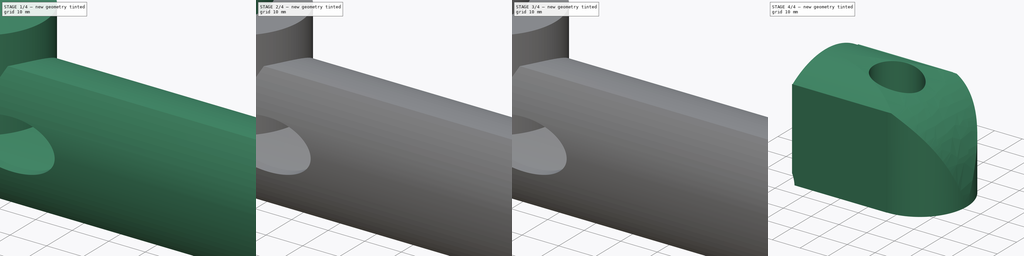
[diagram: build sequence overview — one tinted view per stage of 4, left to right]
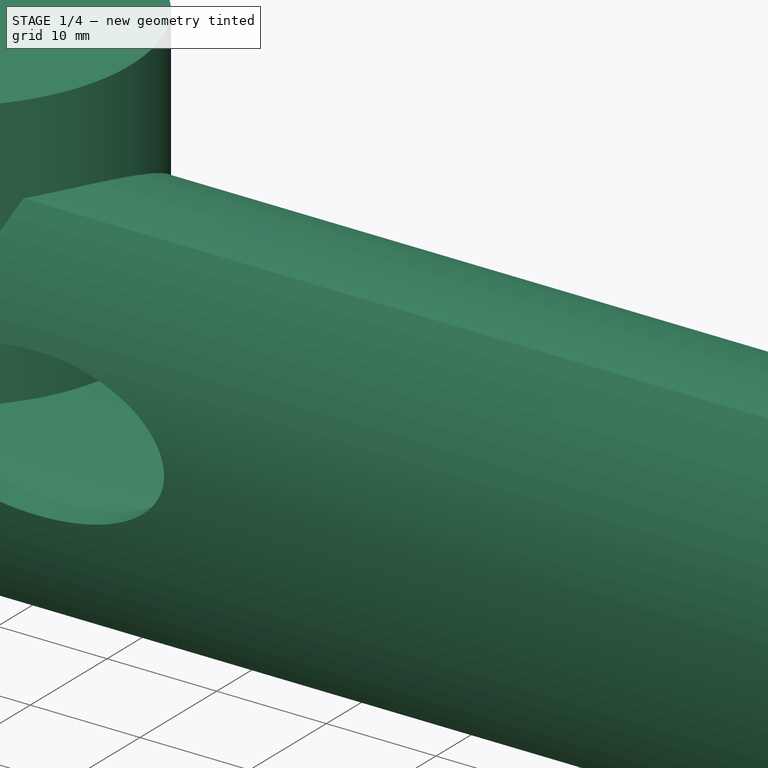
[diagram: stage 1 of 4 — iso view after this stage's code; geometry added in this stage tinted green]
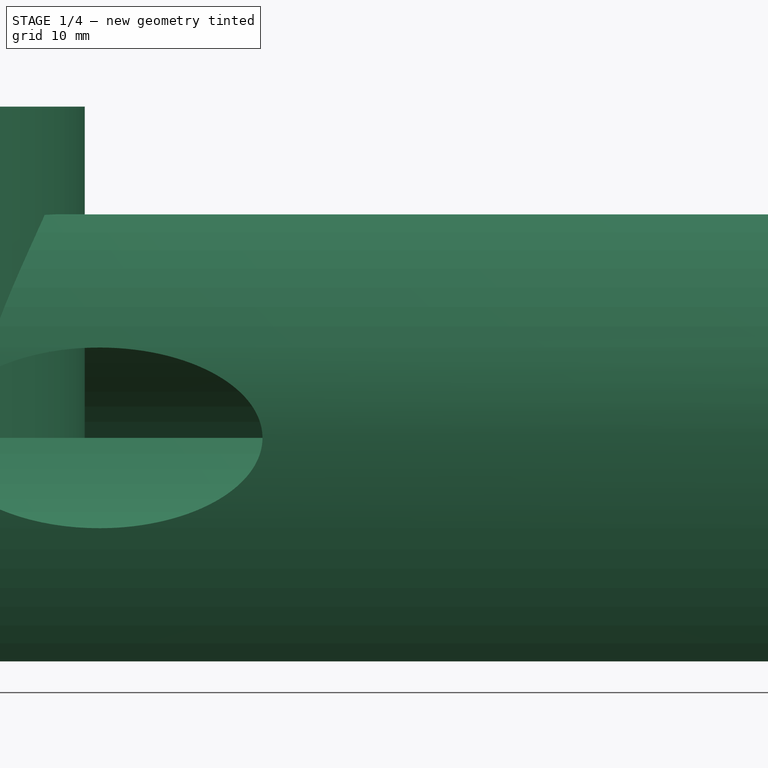
[diagram: stage 1 of 4 — front view after this stage's code; geometry added in this stage tinted green]
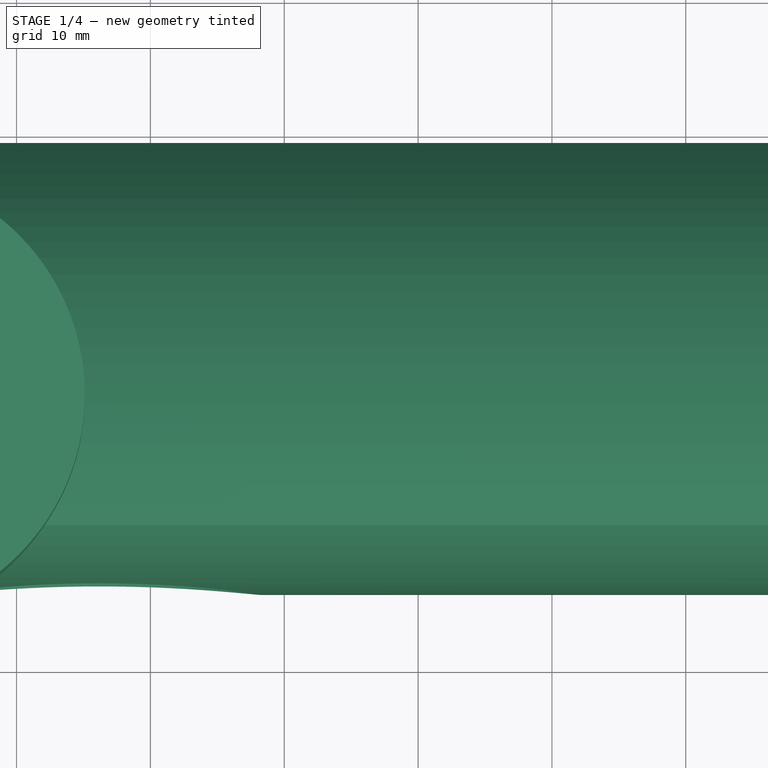
[diagram: stage 1 of 4 — top view after this stage's code; geometry added in this stage tinted green]
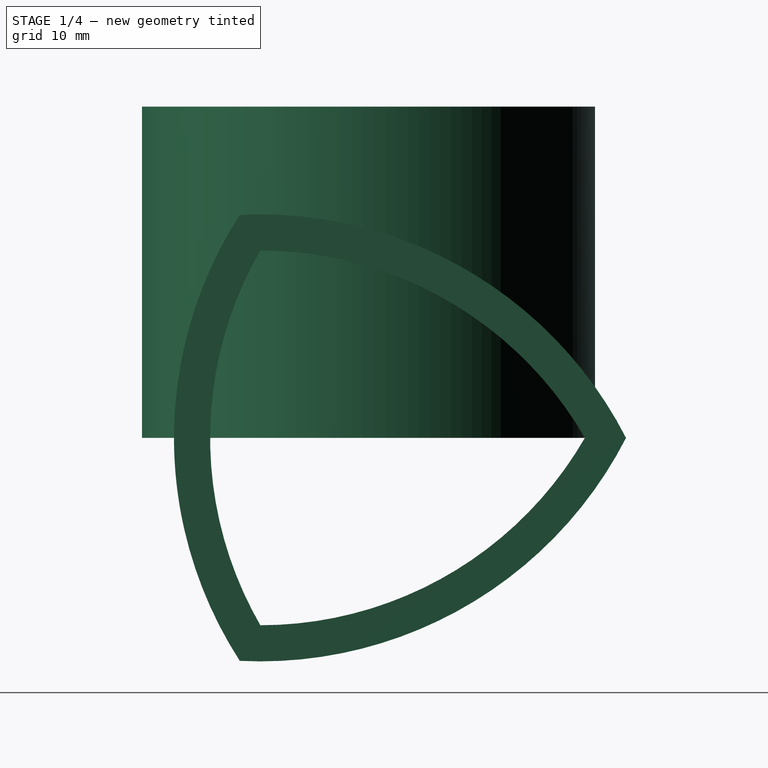
[diagram: stage 1 of 4 — right view after this stage's code; geometry added in this stage tinted green]
FCSTD DOCUMENT  (FreeCAD 1.1R39288 (Git))
Label: Щётка
License: All rights reserved
LicenseURL: https://en.wikipedia.org/wiki/All_rights_reserved
objects: Sketcher::SketchObject×13, PartDesign::Pocket×8, PartDesign::Pad×4, PartDesign::Body×3, PartDesign::SubShapeBinder×2, PartDesign::PolarPattern×1, PartDesign::Thickness×1
note: 72 computed .brp shape members not serialized (recipe doc carries the construction recipe); baked Part::Feature solids carry a one-line shape summary decoded from their .brp

FEATURE [Sketcher::SketchObject] Sketch
  ArcFitTolerance = 1e-06
  AttachmentSupport = -> [XY_Plane]
  FullyConstrained = true
  MakeInternals = false
  MapMode = 5
  sketch-geometry (7):
    g0: ArcOfCircle CenterX=-8.175 CenterY=0 CenterZ=0 NormalX=0 NormalY=0 NormalZ=1 AngleXU=0 Radius=16.925 StartAngle=1.5708 EndAngle=4.71239
    g1: ArcOfCircle CenterX=8.175 CenterY=0 CenterZ=0 NormalX=0 NormalY=0 NormalZ=1 AngleXU=0 Radius=16.925 StartAngle=4.71239 EndAngle=7.85398
    g2: LineSegment StartX=-8.175 StartY=16.925 StartZ=0 EndX=8.17495 EndY=16.925 EndZ=0
    g3: LineSegment StartX=8.175 StartY=-16.925 StartZ=0 EndX=-8.175 EndY=-16.925 EndZ=0
    g4: Circle CenterX=0 CenterY=0 CenterZ=0 NormalX=0 NormalY=0 NormalZ=1 AngleXU=0 Radius=4.7
    g5: GeomPoint [constr] X=-25.1 Y=0 Z=0
    g6: GeomPoint [constr] X=25.1 Y=0 Z=0
  constraints (16):
    c: PointOnObject(g1,g-1)
    c: Coincident(g2,g1)
    c: Horizontal(g2)
    c: Horizontal(g3)
    c: Tangent(g2,g0) = 1.5708
    c: Tangent(g3,g0) = 1.5708
    c: Tangent(g3,g1) = 1.5708
    c: Symmetric(g1,g0,g-2)
    c: Coincident(g4,g-1)
    c: Diameter(g4) = 9.4
    c: PointOnObject(g5,g0)
    c: PointOnObject(g6,g1)
    c: Distance(g5,g6) = 50.2
    c: PointOnObject(g6,g-1)
    c: PointOnObject(g5,g-1)
    c: DistanceY(g1,g1) = 33.85
FEATURE [PartDesign::Pad] Pad
  Direction = (0,0,1)
  Length = 24.75
  Length2 = 10
  Profile = -> Sketch
  ReferenceAxis = -> Sketch [N_Axis]
  Refine = true
  Suppressed = false
  Type = 0
FEATURE [PartDesign::Body] Body  label="Тело"
  AllowCompound = false
  Group = -> [Sketch,Pad,Sketch001,Pocket,Sketch002,Pocket001,Sketch003,Pocket002,Sketch004,Pocket003,Sketch006,Pad001,PolarPattern]
  Origin = -> Origin
  Placement = pos=(-3.1e-15,0,25) rot=(0,1,0;3.14159rad)
  Tip = -> PolarPattern
FEATURE [Sketcher::SketchObject] Sketch007
  ArcFitTolerance = 1e-06
  AttachmentOffset = pos=(0,0,0) rot=(0,0,1;0.523599rad)
  AttachmentSupport = -> [YZ_Plane001]
  FullyConstrained = true
  MakeInternals = false
  MapMode = 5
  Placement = pos=(0,0,0) rot=(0.654654,0.377964,0.654654;2.41886rad)
  sketch-geometry (10):
    g0: LineSegment [constr] StartX=0 StartY=16.1658 StartZ=0 EndX=-14 EndY=-8.0829 EndZ=0
    g1: LineSegment [constr] StartX=-14 StartY=-8.0829 StartZ=0 EndX=14 EndY=-8.0829 EndZ=0
    g2: LineSegment [constr] StartX=14 StartY=-8.0829 StartZ=0 EndX=0 EndY=16.1658 EndZ=0
    g3: Circle [constr] CenterX=0 CenterY=0 CenterZ=0 NormalX=0 NormalY=0 NormalZ=1 AngleXU=0 Radius=16.1658
    g4: Circle [constr] CenterX=-14 CenterY=-8.0829 CenterZ=0 NormalX=0 NormalY=0 NormalZ=1 AngleXU=0 Radius=28
    g5: Circle [constr] CenterX=0 CenterY=16.1658 CenterZ=0 NormalX=0 NormalY=0 NormalZ=1 AngleXU=0 Radius=28
    g6: Circle [constr] CenterX=14 CenterY=-8.0829 CenterZ=0 NormalX=0 NormalY=0 NormalZ=1 AngleXU=0 Radius=28
    g7: ArcOfCircle CenterX=0 CenterY=16.1658 CenterZ=0 NormalX=0 NormalY=0 NormalZ=1 AngleXU=0 Radius=28 StartAngle=4.18879 EndAngle=5.23599
    g8: ArcOfCircle CenterX=-14 CenterY=-8.0829 CenterZ=0 NormalX=0 NormalY=0 NormalZ=1 AngleXU=0 Radius=28 StartAngle=0 EndAngle=1.0472
    g9: ArcOfCircle CenterX=14 CenterY=-8.0829 CenterZ=0 NormalX=0 NormalY=0 NormalZ=1 AngleXU=0 Radius=28 StartAngle=2.0944 EndAngle=3.14159
  constraints (24):
    c: Coincident(g0,g1)
    c: Coincident(g1,g2)
    c: Coincident(g2,g0)
    c: Equal(g0,g1)
    c: PointOnObject(g1,g3)
    c: PointOnObject(g2,g3)
    c: Coincident(g3,g-1)
    c: PointOnObject(g2,g-2)
    c: Coincident(g4,g0)
    c: Coincident(g5,g0)
    c: Coincident(g6,g1)
    c: Equal(g6,g5)
    c: Equal(g5,g4)
    c: DistanceX(g1,g1) = 28
    c: Radius(g5) = 28
    c: Coincident(g8,g7)
    c: Coincident(g8,g7)
    c: Coincident(g8,g7)
    c: Coincident(g9,g0)
    c: Coincident(g7,g0)
    c: Coincident(g7,g9)
    c: Coincident(g7,g1)
    c: Coincident(g9,g0)
    c: PointOnObject(g0,g3)
FEATURE [PartDesign::Pad] Pad002
  Direction = (1,0,0)
  Length = 120
  Length2 = 10
  Placement = pos=(0,0,0) rot=(1,1,1;2.0944rad)
  Profile = -> Sketch007
  ReferenceAxis = -> Sketch007 [N_Axis]
  Refine = true
  Suppressed = false
  Type = 0
FEATURE [PartDesign::Thickness] Thickness
  Base = -> Pad002 [Face5,Face4]
  BaseFeature = -> Pad002
  Intersection = true
  Join = 1
  Mode = 1
  Refine = true
  SupportTransform = false
  Suppressed = false
  Value = 2.7
FEATURE [Sketcher::SketchObject] Sketch008
  ArcFitTolerance = 1e-06
  AttachmentOffset = pos=(0,0,17) rot=(0,0,1;0rad)
  AttachmentSupport = -> [XZ_Plane001]
  FullyConstrained = true
  MakeInternals = false
  MapMode = 5
  Placement = pos=(0,-17,3.8e-15) rot=(1,0,0;1.5708rad)
  sketch-geometry (5):
    g0: Ellipse CenterX=26.1875 CenterY=0 CenterZ=0 NormalX=0 NormalY=0 NormalZ=1 MajorRadius=12.1875 MinorRadius=6.75 AngleXU=-3.14159
    g1: LineSegment [constr] StartX=14 StartY=0 StartZ=0 EndX=38.375 EndY=0 EndZ=0
    g2: LineSegment [constr] StartX=26.1875 StartY=-6.75 StartZ=0 EndX=26.1875 EndY=6.75 EndZ=0
    g3: GeomPoint [constr] X=16.04 Y=0 Z=0
    g4: GeomPoint [constr] X=36.335 Y=0 Z=0
  constraints (6):
    c: InternalAlignment(g1-g4 -> g0) x4
    c: PointOnObject(g0,g-1)
    c: DistanceX(g1,g1) = 24.375
    c: DistanceY(g2,g2) = 13.5
    c: PointOnObject(g1,g-1)
    c: DistanceX(g-1,g1) = 14
FEATURE [PartDesign::Pocket] Pocket004
  BaseFeature = -> Thickness
  Direction = (0,1,-2e-16)
  Length = 5
  Length2 = 5
  Offset = 5
  Profile = -> Sketch008
  ReferenceAxis = -> Sketch008 [N_Axis]
  Refine = true
  Suppressed = false
  Type = 2
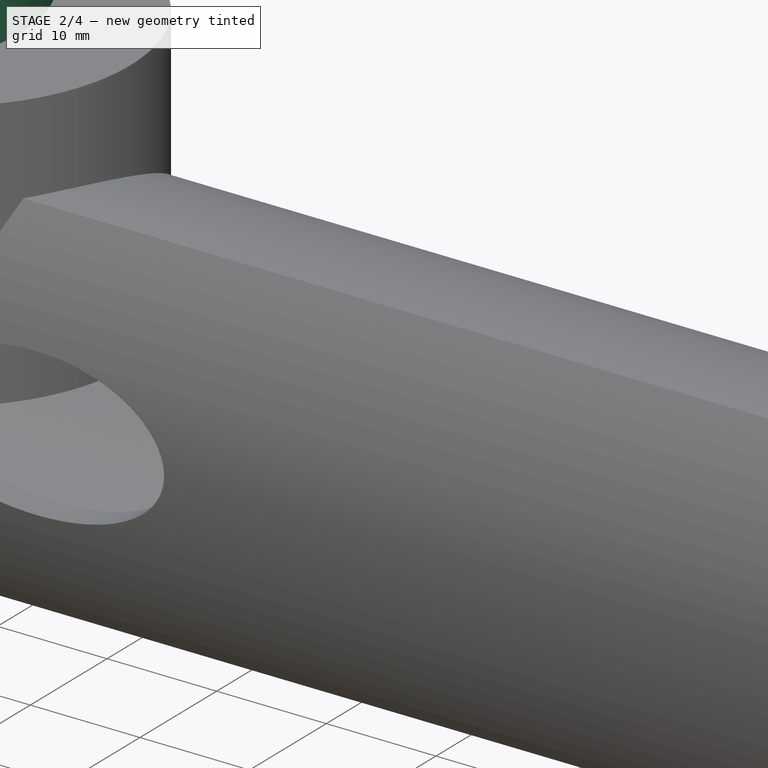
[diagram: stage 2 of 4 — iso view after this stage's code; geometry added in this stage tinted green]
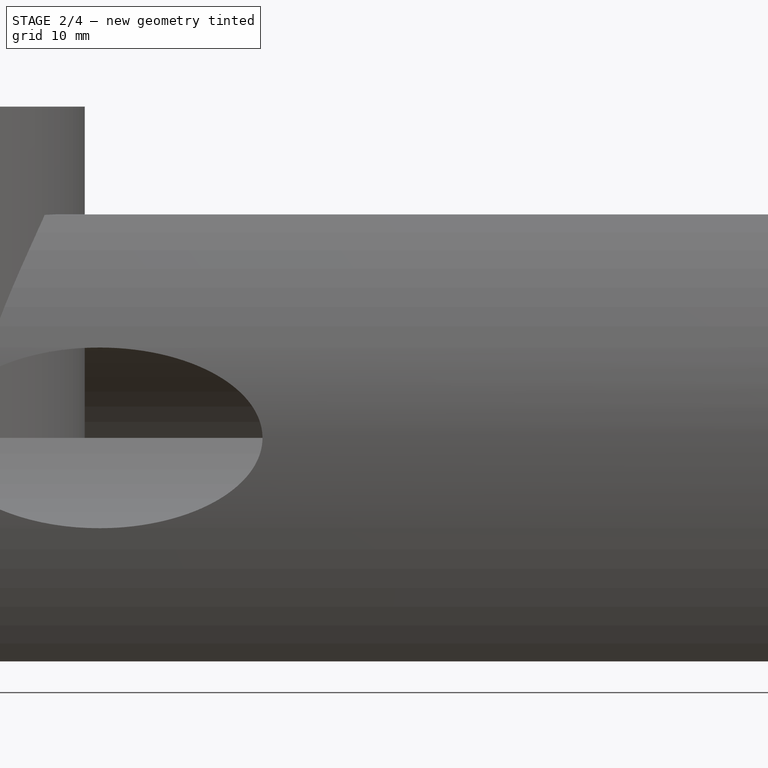
[diagram: stage 2 of 4 — front view after this stage's code; geometry added in this stage tinted green]
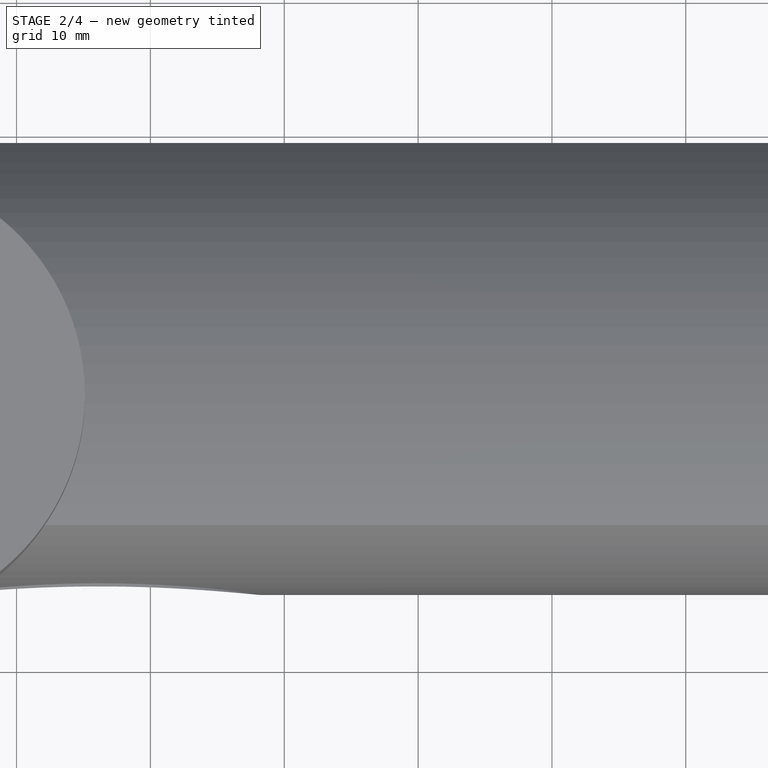
[diagram: stage 2 of 4 — top view after this stage's code; geometry added in this stage tinted green]
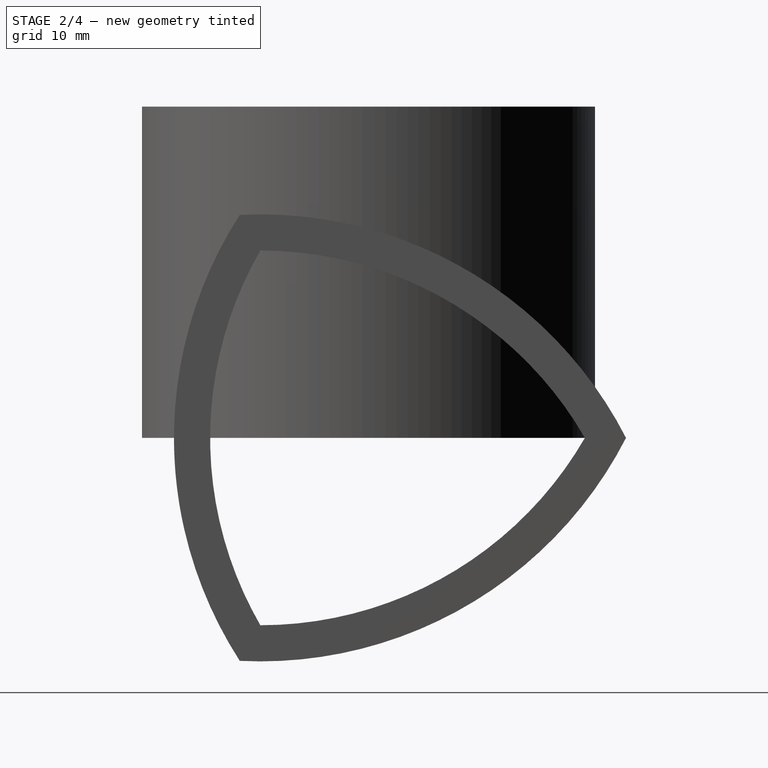
[diagram: stage 2 of 4 — right view after this stage's code; geometry added in this stage tinted green]
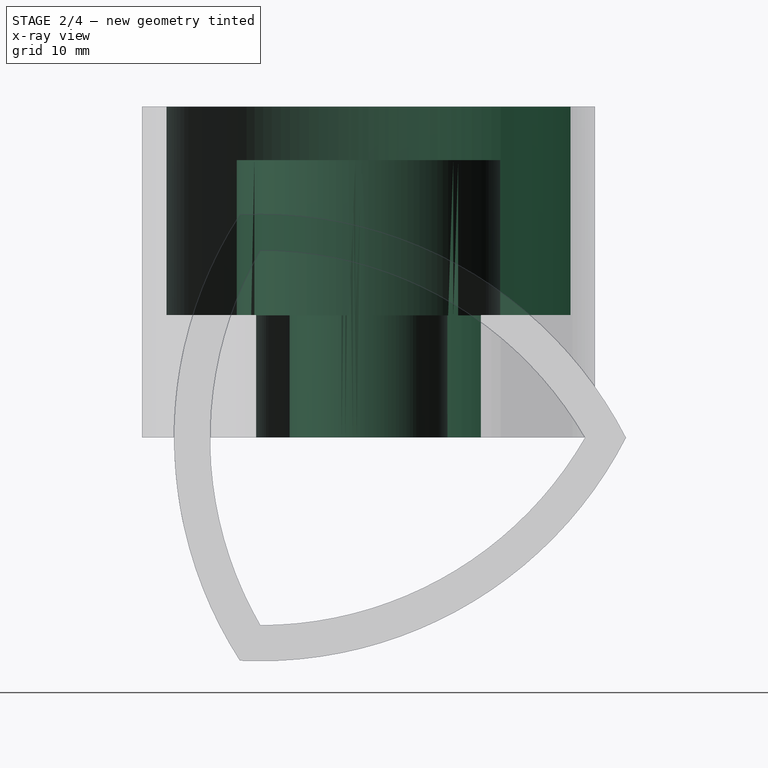
[diagram: stage 2 of 4 — x-ray composite at the right view; earlier geometry ghosted, this stage's added geometry solid]
FEATURE [Sketcher::SketchObject] Sketch001
  ArcFitTolerance = 1e-06
  AttachmentSupport = -> [Pad]
  FullyConstrained = true
  MakeInternals = false
  MapMode = 5
  Placement = pos=(0,0,24.75) rot=(0,0,1;0rad)
  sketch-geometry (2):
    g0: Circle CenterX=0 CenterY=0 CenterZ=0 NormalX=0 NormalY=0 NormalZ=1 AngleXU=0 Radius=15.1
    g1: Circle CenterX=0 CenterY=0 CenterZ=0 NormalX=0 NormalY=0 NormalZ=1 AngleXU=0 Radius=9.85
  constraints (4):
    c: Coincident(g0,g-1)
    c: Coincident(g1,g0)
    c: Diameter(g0) = 30.2
    c: Diameter(g1) = 19.7
FEATURE [PartDesign::Pocket] Pocket
  BaseFeature = -> Pad
  Direction = (0,0,-1)
  Length = 15.6
  Length2 = 5
  Profile = -> Sketch001
  ReferenceAxis = -> Sketch001 [N_Axis]
  Refine = true
  Suppressed = false
  Type = 0
FEATURE [Sketcher::SketchObject] Sketch002
  ArcFitTolerance = 1e-06
  AttachmentSupport = -> [Pocket]
  ExternalGeometry = -> [Pocket]
  FullyConstrained = true
  MakeInternals = false
  MapMode = 5
  Placement = pos=(0,0,24.75) rot=(0,0,1;0rad)
  sketch-geometry (2):
    g0: Circle CenterX=0 CenterY=0 CenterZ=0 NormalX=0 NormalY=0 NormalZ=1 AngleXU=0 Radius=4.7
    g1: Circle CenterX=0 CenterY=0 CenterZ=0 NormalX=0 NormalY=0 NormalZ=1 AngleXU=0 Radius=9.85
  constraints (4):
    c: Coincident(g0,g-1)
    c: Coincident(g1,g0)
    c: Equal(g1,g-3)
    c: Equal(g0,g-4)
FEATURE [PartDesign::Pocket] Pocket001
  BaseFeature = -> Pocket
  Direction = (0,0,-1)
  Length = 4
  Length2 = 5
  Profile = -> Sketch002
  ReferenceAxis = -> Sketch002 [N_Axis]
  Refine = true
  Suppressed = false
  Type = 0
FEATURE [Sketcher::SketchObject] Sketch003
  ArcFitTolerance = 1e-06
  AttachmentSupport = -> [Pocket001]
  ExternalGeometry = -> [Pocket001]
  FullyConstrained = true
  MakeInternals = false
  MapMode = 5
  Placement = pos=(0,0,0) rot=(1,0,0;3.14159rad)
  sketch-geometry (2):
    g0: Circle CenterX=0 CenterY=0 CenterZ=0 NormalX=0 NormalY=0 NormalZ=1 AngleXU=0 Radius=8.4
    g1: Circle CenterX=0 CenterY=0 CenterZ=0 NormalX=0 NormalY=0 NormalZ=1 AngleXU=0 Radius=5.9
  constraints (5):
    c: Coincident(g0,g-1)
    c: Coincident(g1,g0)
    c: Distance(g-4,g1) = 1.2
    c: Distance(g0,g-3) = 1.45
    c: Distance(g1,g0) = 2.5
FEATURE [PartDesign::Pocket] Pocket002
  BaseFeature = -> Pocket001
  Direction = (0,0,1)
  Length = 0
  Length2 = 5
  Offset = 1
  Profile = -> Sketch003
  ReferenceAxis = -> Sketch003 [N_Axis]
  Refine = true
  Suppressed = false
  Type = 3
  UpToFace = -> Pocket001 [Face9]
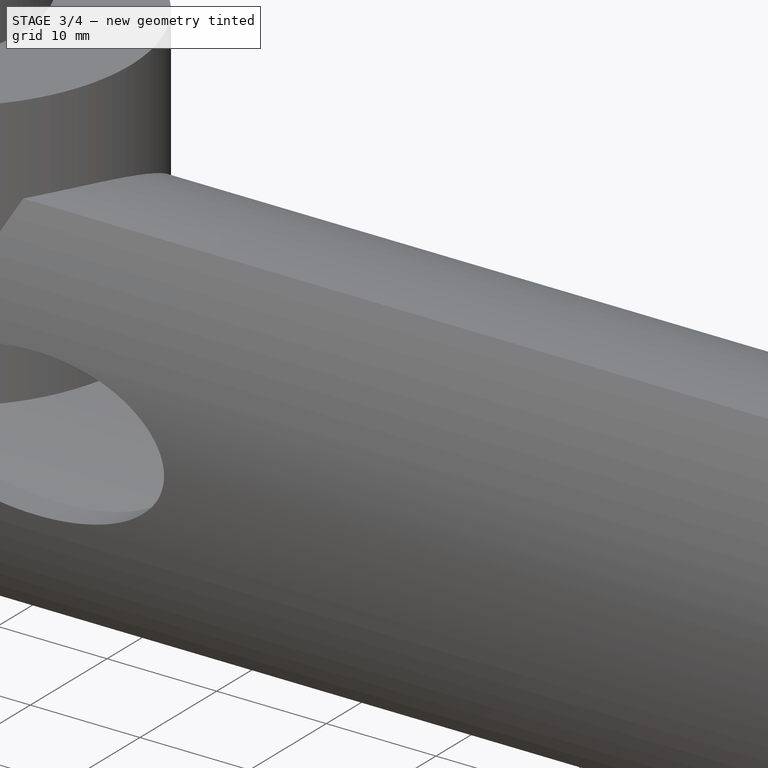
[diagram: stage 3 of 4 — iso view after this stage's code; geometry added in this stage tinted green]
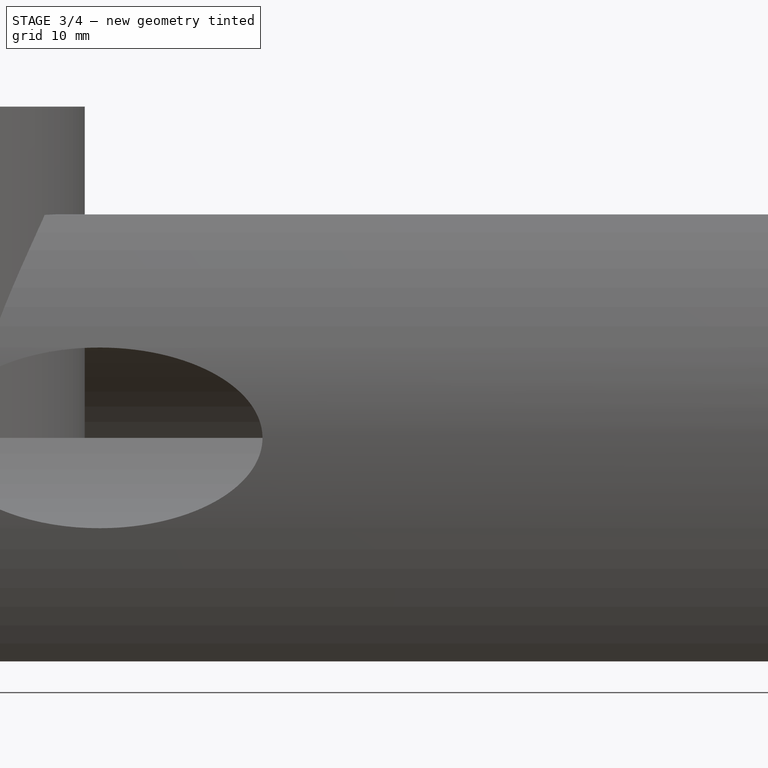
[diagram: stage 3 of 4 — front view after this stage's code; geometry added in this stage tinted green]
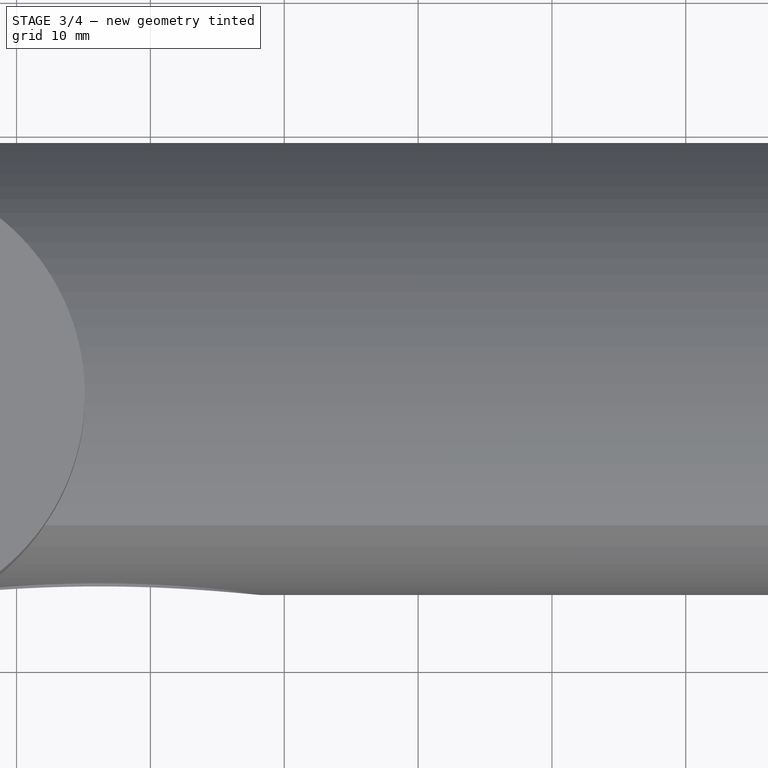
[diagram: stage 3 of 4 — top view after this stage's code; geometry added in this stage tinted green]
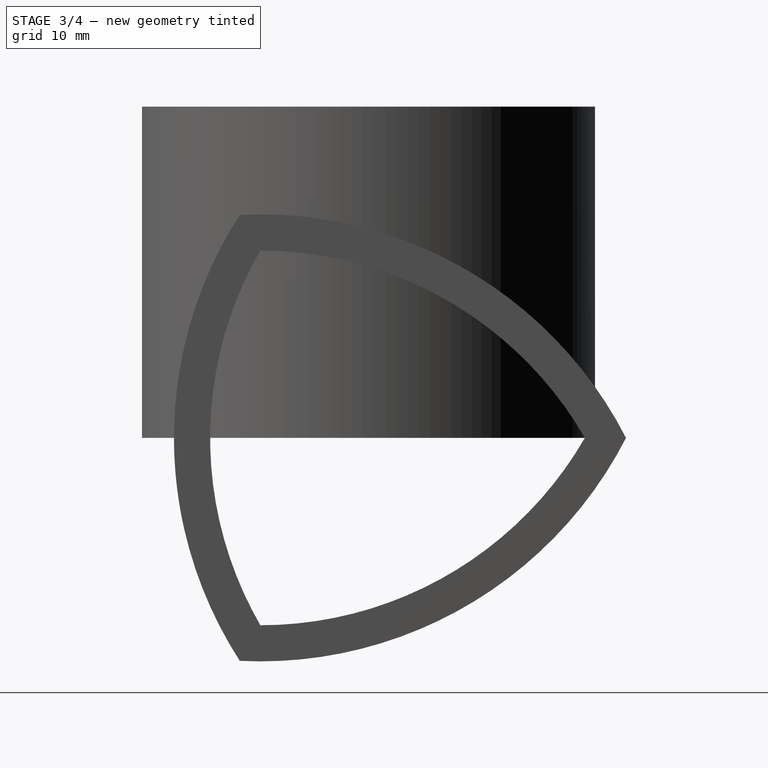
[diagram: stage 3 of 4 — right view after this stage's code; geometry added in this stage tinted green]
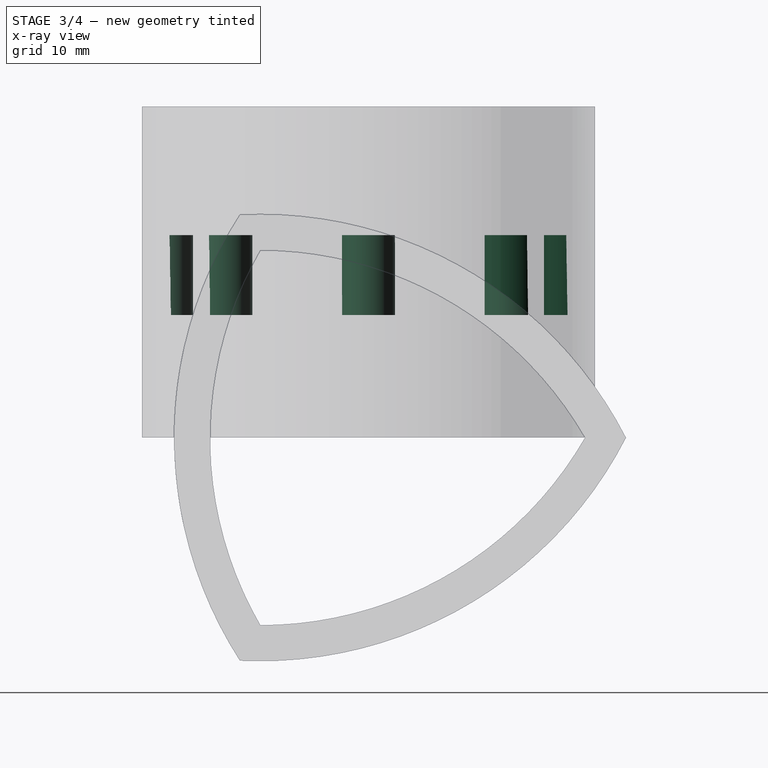
[diagram: stage 3 of 4 — x-ray composite at the right view; earlier geometry ghosted, this stage's added geometry solid]
FEATURE [Sketcher::SketchObject] Sketch004
  ArcFitTolerance = 1e-06
  AttachmentSupport = -> [Pocket002]
  ExternalGeometry = -> [Pocket002]
  FullyConstrained = true
  MakeInternals = false
  MapMode = 5
  Placement = pos=(0,0,0) rot=(1,0,0;3.14159rad)
  sketch-geometry (2):
    g0: Circle CenterX=0 CenterY=0 CenterZ=0 NormalX=0 NormalY=0 NormalZ=1 AngleXU=0 Radius=4.7
    g1: Circle CenterX=0 CenterY=0 CenterZ=0 NormalX=0 NormalY=0 NormalZ=1 AngleXU=0 Radius=5.9
  constraints (4):
    c: Coincident(g0,g-1)
    c: Coincident(g1,g0)
    c: Equal(g1,g-4)
    c: Equal(g0,g-3)
FEATURE [PartDesign::Pocket] Pocket003
  BaseFeature = -> Pocket002
  Direction = (0,0,1)
  Length = 10.5
  Length2 = 5
  Profile = -> Sketch004
  ReferenceAxis = -> Sketch004 [N_Axis]
  Refine = true
  Suppressed = false
  Type = 0
FEATURE [Sketcher::SketchObject] Sketch006
  ArcFitTolerance = 1e-06
  AttachmentOffset = pos=(0,0,-11.6) rot=(0,0,1;0rad)
  AttachmentSupport = -> [Pocket001]
  ExternalGeometry = -> [Pocket001]
  FullyConstrained = true
  MakeInternals = false
  MapMode = 5
  Placement = pos=(0,0,9.15) rot=(0,0,1;0rad)
  sketch-geometry (2):
    g0: ArcOfCircle CenterX=-15.1 CenterY=0 CenterZ=0 NormalX=0 NormalY=0 NormalZ=1 AngleXU=0 Radius=2 StartAngle=4.77866 EndAngle=7.78771
    g1: ArcOfCircle CenterX=0 CenterY=0 CenterZ=0 NormalX=0 NormalY=0 NormalZ=1 AngleXU=0 Radius=15.1 StartAngle=3.00905 EndAngle=3.27414
  constraints (7):
    c: Radius(g0) = 2
    c: Coincident(g1,g-1)
    c: Coincident(g1,g0)
    c: Coincident(g1,g0)
    c: PointOnObject(g0,g-3)
    c: PointOnObject(g0,g1)
    c: PointOnObject(g0,g-1)
FEATURE [PartDesign::Pad] Pad001
  BaseFeature = -> Pocket003
  Direction = (0,0,1)
  Length = 6
  Length2 = 10
  Profile = -> Sketch006
  ReferenceAxis = -> Sketch006 [N_Axis]
  Refine = true
  Suppressed = false
  Type = 0
FEATURE [PartDesign::PolarPattern] PolarPattern
  Angle = 360
  Axis = -> Sketch006 [N_Axis]
  BaseFeature = -> Pad001
  Mode = 0
  Occurrences = 8
  Offset = 120
  Originals = -> [Pad001]
  Refine = true
  Suppressed = false
  TransformMode = 0
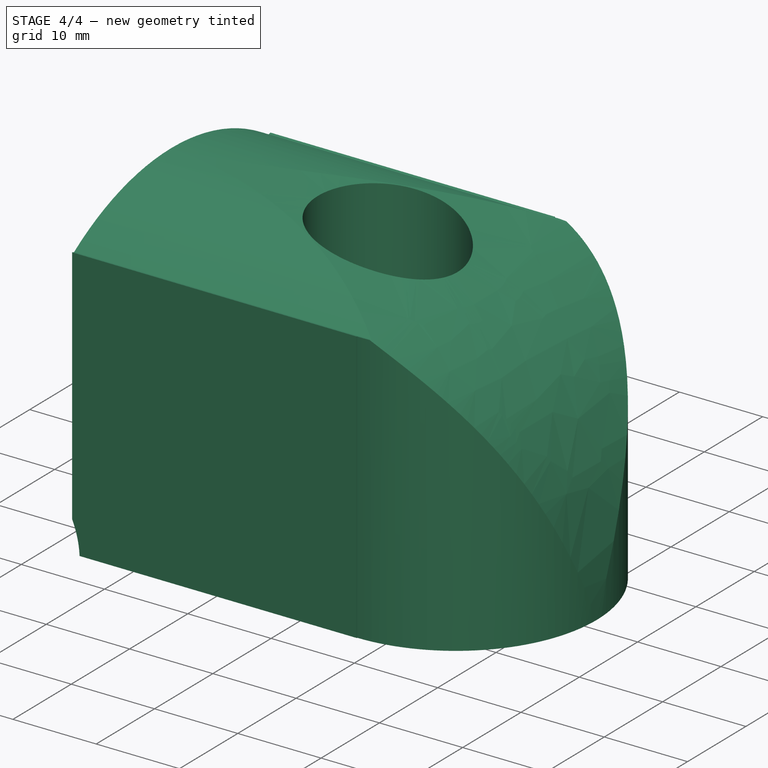
[diagram: stage 4 of 4 — iso view after this stage's code; geometry added in this stage tinted green]
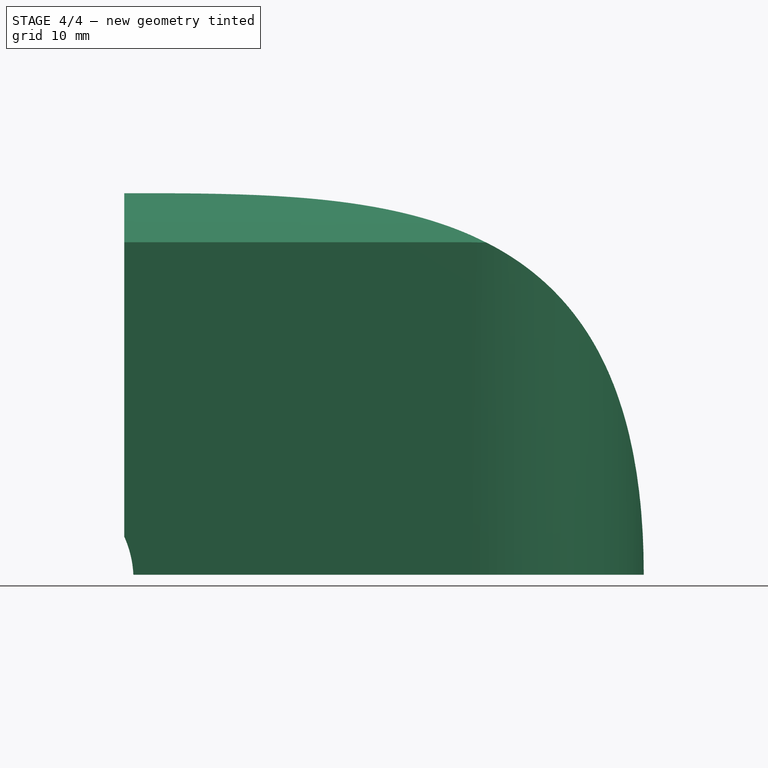
[diagram: stage 4 of 4 — front view after this stage's code; geometry added in this stage tinted green]
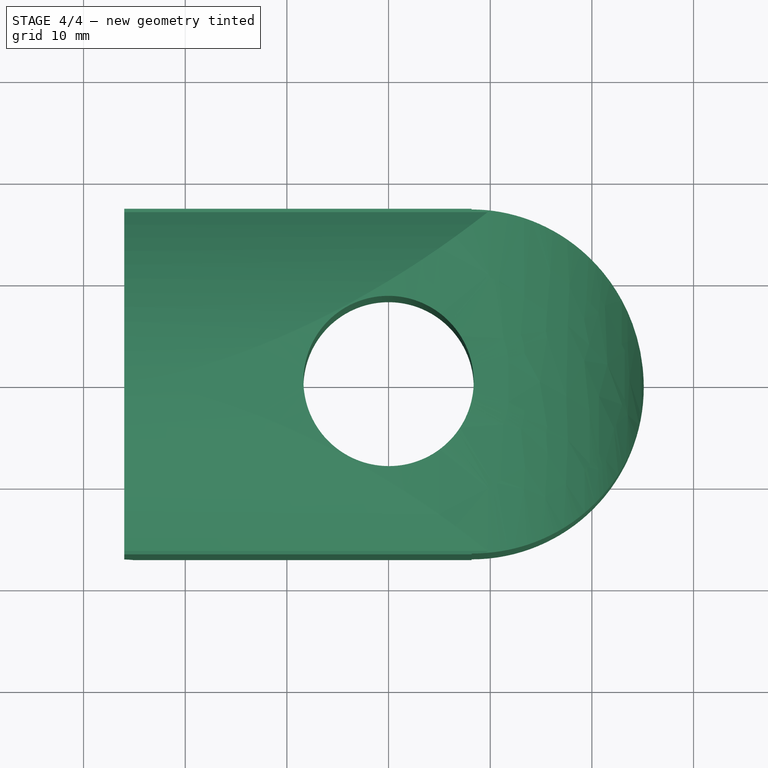
[diagram: stage 4 of 4 — top view after this stage's code; geometry added in this stage tinted green]
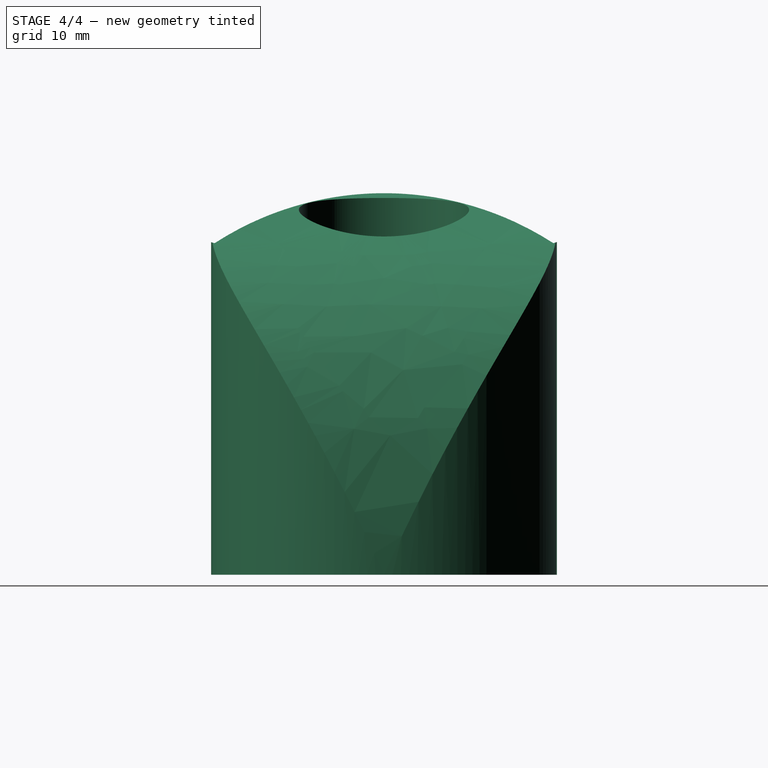
[diagram: stage 4 of 4 — right view after this stage's code; geometry added in this stage tinted green]
FEATURE [PartDesign::Body] Body001  label="Тело001"
  AllowCompound = false
  Group = -> [Sketch007,Pad002,Thickness,Sketch008,Pocket004]
  Origin = -> Origin001
  Placement = pos=(-146,0,48) rot=(-1,0,0;1.5708rad)
  Tip = -> Pocket004
FEATURE [PartDesign::SubShapeBinder] Binder
  BindCopyOnChange = 0
  BindMode = 0
  ClaimChildren = false
  Context = -> Body002 [Binder.]
  Fuse = false
  MakeFace = true
  OffsetFill = false
  OffsetIntersection = false
  OffsetJoinType = 0
  OffsetOpenResult = false
  PartialLoad = false
  Refine = true
  Relative = true
  Support = -> [Body[PolarPattern.Face5],Body001[Pocket004.Face5]]
  _Version = 2
FEATURE [Sketcher::SketchObject] Sketch010
  ArcFitTolerance = 1e-06
  AttachmentSupport = -> [Binder]
  ExternalGeometry = -> [Binder]
  FullyConstrained = false
  MakeInternals = false
  MapMode = 5
  Placement = pos=(0,0,0.25) rot=(1,0,0;3.14159rad)
  sketch-geometry (6):
    g0: LineSegment StartX=8.175 StartY=16.925 StartZ=0 EndX=8.175 EndY=21.0592 EndZ=0
    g1: LineSegment StartX=8.175 StartY=-16.925 StartZ=0 EndX=8.175 EndY=-19.6209 EndZ=0
    g2: LineSegment StartX=8.175 StartY=-19.6209 StartZ=0 EndX=28.0501 EndY=-19.6209 EndZ=0
    g3: LineSegment StartX=28.0501 StartY=-19.6209 StartZ=0 EndX=28.0501 EndY=21.0592 EndZ=0
    g4: LineSegment StartX=28.0501 StartY=21.0592 StartZ=0 EndX=8.175 EndY=21.0592 EndZ=0
    g5: ArcOfCircle CenterX=8.175 CenterY=-5.656e-13 CenterZ=0 NormalX=0 NormalY=0 NormalZ=1 AngleXU=0 Radius=16.925 StartAngle=4.71239 EndAngle=7.85398
  constraints (13):
    c: Coincident(g0,g-3)
    c: Coincident(g1,g-3)
    c: Coincident(g1,g2)
    c: Horizontal(g2)
    c: Coincident(g2,g3)
    c: Coincident(g3,g4)
    c: Coincident(g4,g0)
    c: Horizontal(g4)
    c: Coincident(g5,g-3)
    c: Coincident(g5,g0)
    c: Vertical(g0)
    c: Vertical(g3)
    c: Vertical(g1)
FEATURE [PartDesign::SubShapeBinder] Binder001
  BindCopyOnChange = 0
  BindMode = 0
  ClaimChildren = false
  Context = -> Body002 [Binder001.]
  Fuse = false
  MakeFace = true
  OffsetFill = false
  OffsetIntersection = false
  OffsetJoinType = 0
  OffsetOpenResult = false
  PartialLoad = false
  Refine = true
  Relative = true
  Support = -> [Body[PolarPattern.Face4]]
  _Version = 2
FEATURE [Sketcher::SketchObject] Sketch009
  ArcFitTolerance = 1e-06
  AttachmentSupport = -> [XZ_Plane002]
  ExternalGeometry = -> [Binder,Binder001]
  FullyConstrained = false
  MakeInternals = false
  MapMode = 5
  Placement = pos=(0,0,0) rot=(1,0,0;1.5708rad)
  sketch-geometry (10):
    g0-g3: Circle [constr] x4 (B-spline internal-alignment scaffolding for g4; pole/knot coordinates omitted)
    g4: BSplineCurve PolesCount=4 KnotsCount=2 Degree=3 IsPeriodic=0
    g5: GeomPoint [constr] X=-26 Y=62.5342 Z=0
    g6: GeomPoint [constr] X=25.1 Y=25 Z=0
    g7: ArcOfCircle CenterX=-35.4488 CenterY=24.5117 CenterZ=0 NormalX=0 NormalY=0 NormalZ=1 AngleXU=0 Radius=10.3603 StartAngle=0.047153 EndAngle=0.422617
    g8: LineSegment StartX=-26 StartY=28.7609 StartZ=0 EndX=-26 EndY=62.5342 EndZ=0
    g9: LineSegment StartX=-25.1 StartY=25 StartZ=0 EndX=25.1 EndY=25 EndZ=0
  constraints (19):
    c: Weight(g0) = 1
    c: Equal(g0,g1)
    c: Equal(g0,g2)
    c: Equal(g0,g3)
    c: InternalAlignment(g0-g3 -> g4) x4
    c: InternalAlignment(g5,g4)
    c: InternalAlignment(g6,g4)
    c: Coincident(g0,g-6)
    c: PointOnObject(g1,g-2)
    c: Coincident(g3,g-5)
    c: Horizontal(g4,g1)
    c: Horizontal(g1,g2)
    c: Vertical(g4,g2)
    c: Coincident(g7,g-7)
    c: Coincident(g7,g-4)
    c: Coincident(g8,g7)
    c: Coincident(g8,g4)
    c: Coincident(g9,g7)
    c: Coincident(g9,g4)
FEATURE [PartDesign::Pad] Pad003
  Direction = (0,-1,2e-16)
  Length = 17
  Length2 = 17
  Placement = pos=(0,0,0) rot=(1,0,0;1.5708rad)
  Profile = -> Sketch009
  ReferenceAxis = -> Sketch009 [N_Axis]
  Refine = true
  Suppressed = false
  Type = 4
FEATURE [PartDesign::Pocket] Pocket005
  BaseFeature = -> Pad003
  Direction = (0,0,1)
  Length = 5
  Length2 = 5
  Placement = pos=(0,0,0) rot=(1,0,0;1.5708rad)
  Profile = -> Sketch010
  ReferenceAxis = -> Sketch010 [N_Axis]
  Refine = true
  Suppressed = false
  Type = 1
FEATURE [Sketcher::SketchObject] Sketch011
  ArcFitTolerance = 1e-06
  AttachmentSupport = -> [YZ_Plane002]
  ExternalGeometry = -> [Binder]
  FullyConstrained = false
  MakeInternals = false
  MapMode = 5
  Placement = pos=(0,0,0) rot=(0.57735,0.57735,0.57735;2.0944rad)
  sketch-geometry (6):
    g0: LineSegment StartX=-16.6615 StartY=57.6195 StartZ=0 EndX=-19.9972 EndY=58.5667 EndZ=0
    g1: LineSegment StartX=16.6615 StartY=57.6195 StartZ=0 EndX=18.6917 EndY=58.2942 EndZ=0
    g2: LineSegment StartX=18.6917 StartY=58.2942 StartZ=0 EndX=18.6917 EndY=64.1974 EndZ=0
    g3: LineSegment StartX=18.6917 StartY=64.1974 StartZ=0 EndX=-19.9972 EndY=64.1974 EndZ=0
    g4: LineSegment StartX=-19.9972 StartY=64.1974 StartZ=0 EndX=-19.9972 EndY=58.5667 EndZ=0
    g5: ArcOfCircle CenterX=3.17e-14 CenterY=31.8342 CenterZ=0 NormalX=0 NormalY=0 NormalZ=1 AngleXU=0 Radius=30.7 StartAngle=0.997124 EndAngle=2.14447
  constraints (12):
    c: Coincident(g1,g2)
    c: Vertical(g2)
    c: Coincident(g2,g3)
    c: Horizontal(g3)
    c: Coincident(g3,g4)
    c: Coincident(g4,g0)
    c: Vertical(g4)
    c: Coincident(g5,g1)
    c: Coincident(g-4,g1)
    c: Coincident(g0,g5)
    c: Coincident(g0,g-4)
    c: Coincident(g5,g-4)
FEATURE [PartDesign::Pocket] Pocket006
  BaseFeature = -> Pocket005
  Direction = (-1,0,0)
  Length = 59
  Length2 = 56
  Placement = pos=(0,0,0) rot=(1,0,0;1.5708rad)
  Profile = -> Sketch011
  ReferenceAxis = -> Sketch011 [N_Axis]
  Refine = true
  Suppressed = false
  Type = 4
FEATURE [Sketcher::SketchObject] Sketch012
  ArcFitTolerance = 1e-06
  AttachmentOffset = pos=(0,0,73) rot=(0,0,1;0rad)
  AttachmentSupport = -> [XY_Plane002]
  FullyConstrained = false
  MakeInternals = false
  MapMode = 5
  Placement = pos=(0,0,73) rot=(0,0,1;0rad)
  sketch-geometry (2):
    g0: Circle CenterX=0 CenterY=0 CenterZ=0 NormalX=0 NormalY=0 NormalZ=1 AngleXU=0 Radius=4.7
    g1: Circle CenterX=0 CenterY=0 CenterZ=0 NormalX=0 NormalY=0 NormalZ=1 AngleXU=0 Radius=8.375
  constraints (2):
    c: Diameter(g1) = 16.75
    c: Diameter(g0) = 9.4
FEATURE [PartDesign::Pocket] Pocket007
  BaseFeature = -> Pocket006
  Direction = (0,0,-1)
  Length = 5
  Length2 = 5
  Placement = pos=(0,0,0) rot=(1,0,0;1.5708rad)
  Profile = -> Sketch012
  ReferenceAxis = -> Sketch012 [N_Axis]
  Refine = true
  Suppressed = false
  Type = 1
FEATURE [Sketcher::SketchObject] Sketch013
  ArcFitTolerance = 1e-06
  AttachmentSupport = -> [Pocket007]
  FullyConstrained = false
  MakeInternals = false
  MapMode = 5
  Placement = pos=(-26,0,0) rot=(0.707107,0,-0.707107;3.14159rad)
  sketch-geometry (14):
    g0: LineSegment [constr] StartX=-55.7585 StartY=14 StartZ=0 EndX=-55.7585 EndY=-14 EndZ=0
    g1: LineSegment [constr] StartX=-55.7585 StartY=-14 StartZ=0 EndX=-31.5098 EndY=-8.9e-15 EndZ=0
    g2: LineSegment [constr] StartX=-31.5098 StartY=-8.9e-15 StartZ=0 EndX=-55.7585 EndY=14 EndZ=0
    g3: Circle [constr] CenterX=-47.6756 CenterY=0 CenterZ=0 NormalX=0 NormalY=0 NormalZ=1 AngleXU=0 Radius=16.1658
    g4: ArcOfCircle CenterX=-31.5098 CenterY=0 CenterZ=0 NormalX=0 NormalY=0 NormalZ=1 AngleXU=0 Radius=28 StartAngle=2.61799 EndAngle=3.66519
    g5: ArcOfCircle CenterX=-55.7585 CenterY=-14 CenterZ=0 NormalX=0 NormalY=0 NormalZ=1 AngleXU=0 Radius=28 StartAngle=0.523599 EndAngle=1.5708
    g6: ArcOfCircle CenterX=-55.7585 CenterY=14 CenterZ=0 NormalX=0 NormalY=0 NormalZ=1 AngleXU=0 Radius=28 StartAngle=4.71239 EndAngle=5.75959
    g7: LineSegment [constr] StartX=-57.3463 StartY=16.75 StartZ=0 EndX=-57.3463 EndY=-16.75 EndZ=0
    g8: LineSegment [constr] StartX=-57.3463 StartY=-16.75 StartZ=0 EndX=-28.3344 EndY=0 EndZ=0
    g9: LineSegment [constr] StartX=-28.3344 StartY=0 StartZ=0 EndX=-57.3463 EndY=16.75 EndZ=0
    g10: Circle [constr] CenterX=-47.6756 CenterY=0 CenterZ=0 NormalX=0 NormalY=0 NormalZ=1 AngleXU=0 Radius=19.3412
    g11: ArcOfCircle CenterX=-28.3344 CenterY=0 CenterZ=0 NormalX=0 NormalY=0 NormalZ=1 AngleXU=0 Radius=33.5 StartAngle=2.61799 EndAngle=3.66519
    g12: ArcOfCircle CenterX=-57.3463 CenterY=-16.75 CenterZ=0 NormalX=0 NormalY=0 NormalZ=1 AngleXU=0 Radius=33.5 StartAngle=0.523599 EndAngle=1.5708
    g13: ArcOfCircle CenterX=-57.3463 CenterY=16.75 CenterZ=0 NormalX=0 NormalY=0 NormalZ=1 AngleXU=0 Radius=33.5 StartAngle=4.71239 EndAngle=5.75959
  constraints (36):
    c: Coincident(g0,g1)
    c: Coincident(g1,g2)
    c: Coincident(g2,g0)
    c: PointOnObject(g0,g3)
    c: PointOnObject(g1,g3)
    c: PointOnObject(g2,g3)
    c: PointOnObject(g3,g-1)
    c: PointOnObject(g1,g-1)
    c: Coincident(g5,g4)
    c: Coincident(g5,g4)
    c: Coincident(g5,g4)
    c: Coincident(g6,g4)
    c: Coincident(g6,g0)
    c: Coincident(g6,g1)
    c: Coincident(g4,g0)
    c: Coincident(g4,g0)
    c: DistanceY(g0,g0) = 28
    c: Coincident(g7,g8)
    c: Coincident(g8,g9)
    c: Coincident(g9,g7)
    c: PointOnObject(g7,g10)
    c: PointOnObject(g8,g10)
    c: PointOnObject(g9,g10)
    c: Coincident(g10,g3)
    c: DistanceY(g7,g7) = 33.5
    c: Coincident(g11,g8)
    c: Coincident(g11,g7)
    c: Coincident(g12,g7)
    c: Coincident(g12,g7)
    c: Coincident(g12,g8)
    c: Coincident(g11,g7)
    c: Coincident(g13,g8)
    c: Coincident(g13,g7)
    c: Equal(g2,g1)
    c: PointOnObject(g8,g-1)
    c: PointOnObject(g13,g10)
FEATURE [PartDesign::Body] Body002  label="Тело002"
  AllowCompound = false
  Group = -> [Sketch009,Binder,Pad003,Sketch010,Binder001,Pocket005,Sketch011,Pocket006,Sketch012,Pocket007,Sketch013]
  Origin = -> Origin002
  Tip = -> Pocket007
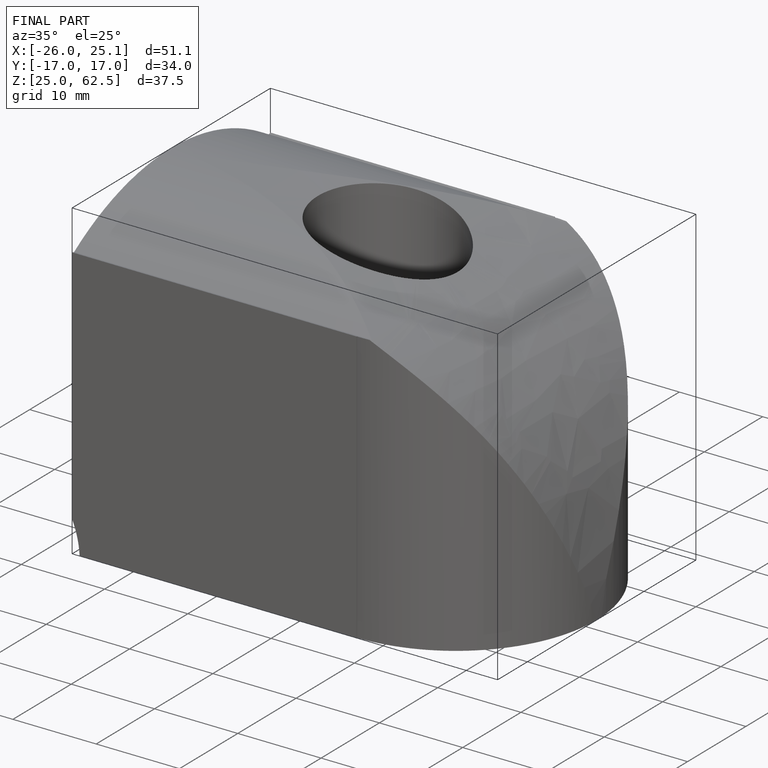
[diagram: finished part — iso view with bounding-box wireframe]
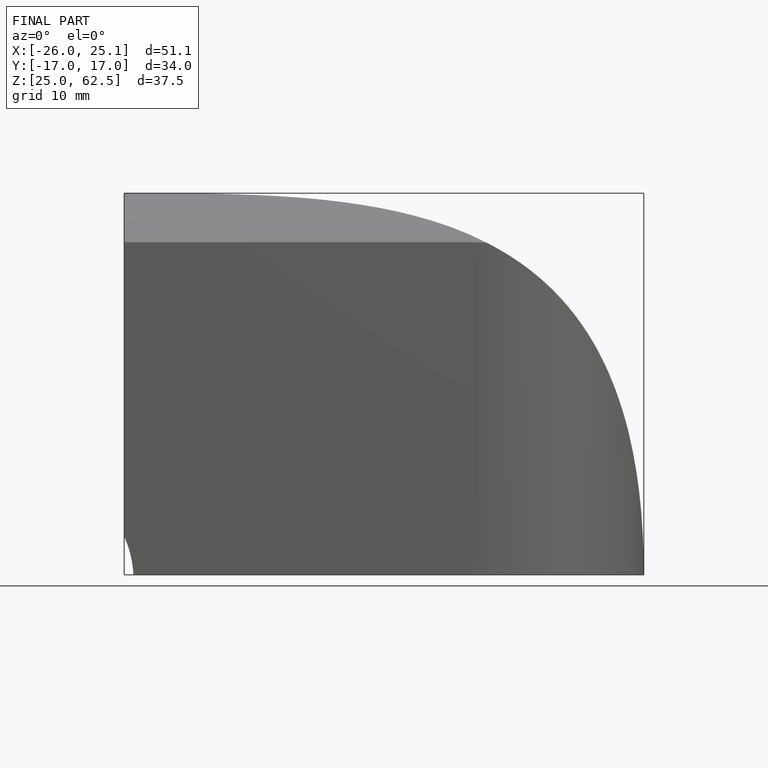
[diagram: finished part — front view with bounding-box wireframe]
